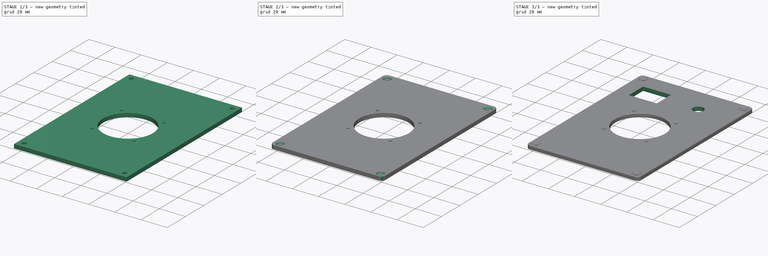
[diagram: build sequence overview — one tinted view per stage of 3, left to right]
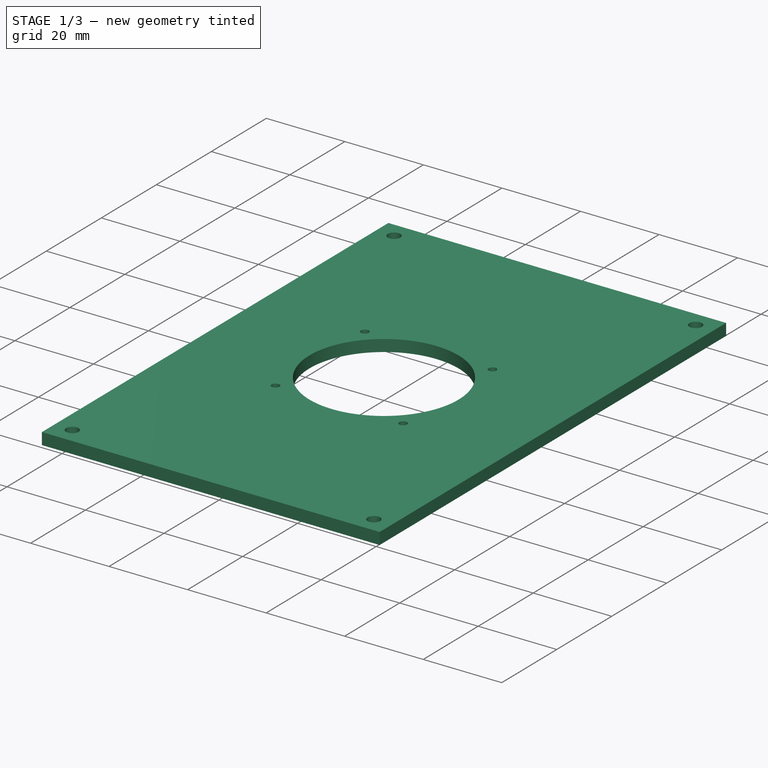
[diagram: stage 1 of 3 — iso view after this stage's code; geometry added in this stage tinted green]
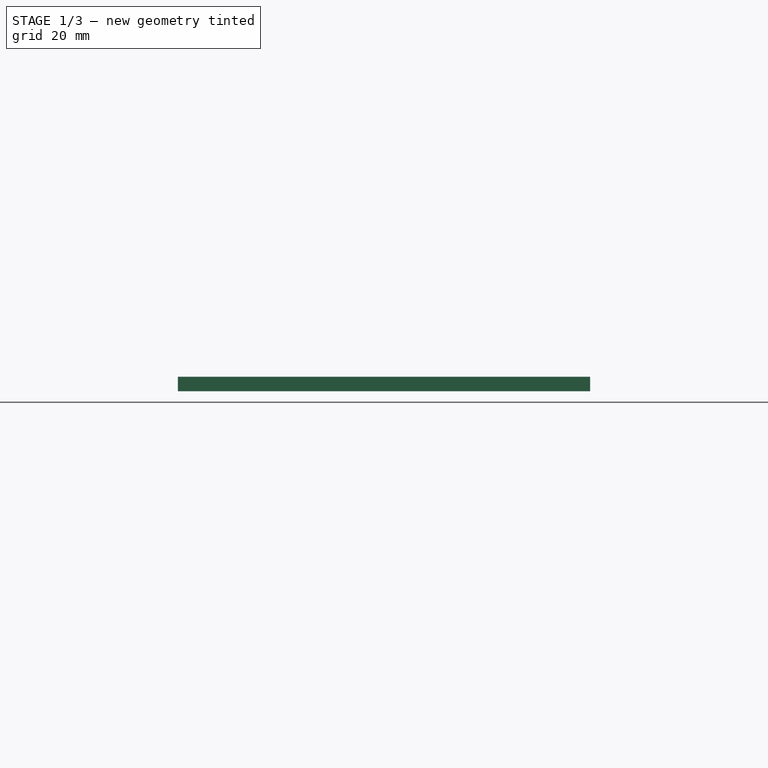
[diagram: stage 1 of 3 — front view after this stage's code; geometry added in this stage tinted green]
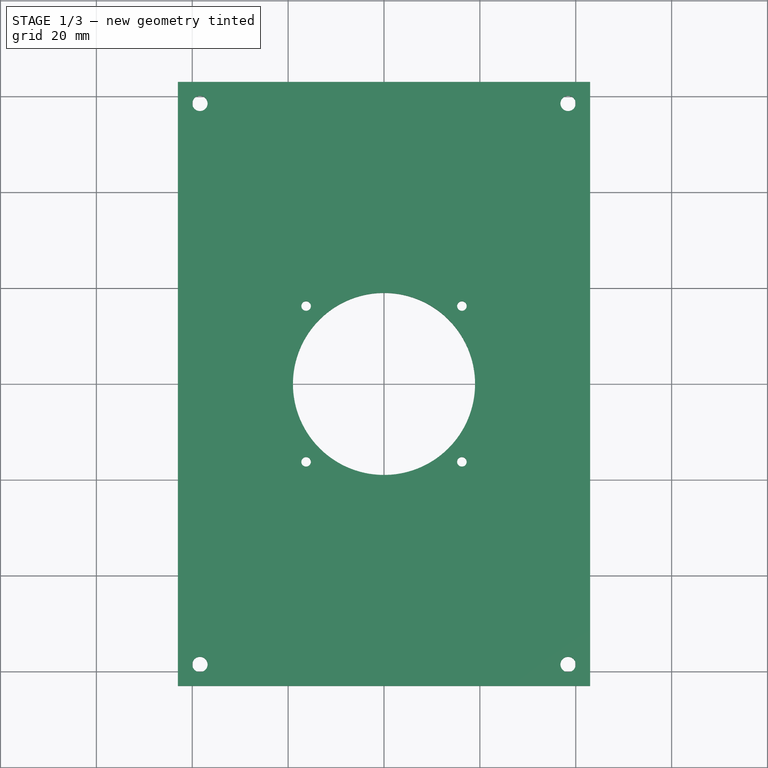
[diagram: stage 1 of 3 — top view after this stage's code; geometry added in this stage tinted green]
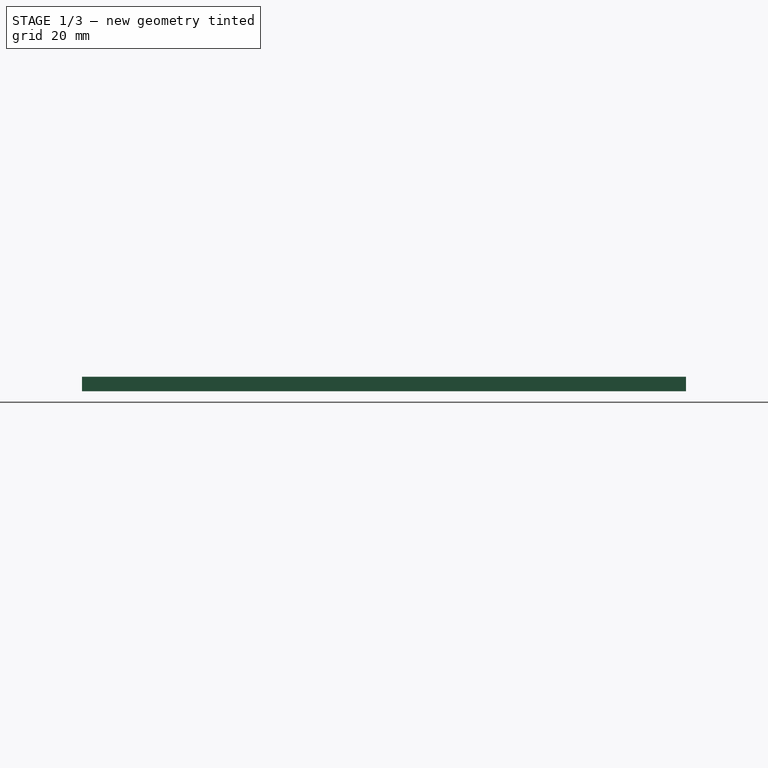
[diagram: stage 1 of 3 — right view after this stage's code; geometry added in this stage tinted green]
FCSTD DOCUMENT  (FreeCAD 0.18.3R)
Label: box_lid
License: All rights reserved
LicenseURL: http://en.wikipedia.org/wiki/All_rights_reserved
objects: Sketcher::SketchObject×3, PartDesign::Pocket×2, PartDesign::Fillet×2, PartDesign::Pad×1, PartDesign::Chamfer×1, PartDesign::Body×1
note: 13 computed .brp shape members not serialized (recipe doc carries the construction recipe); baked Part::Feature solids carry a one-line shape summary decoded from their .brp

FEATURE [Sketcher::SketchObject] Sketch
  MapMode = 5
  Support = -> [XY_Plane]
  sketch-geometry (4):
    g0: LineSegment StartX=-43 StartY=63 StartZ=0 EndX=43 EndY=63 EndZ=0
    g1: LineSegment StartX=43 StartY=63 StartZ=0 EndX=43 EndY=-63 EndZ=0
    g2: LineSegment StartX=43 StartY=-63 StartZ=0 EndX=-43 EndY=-63 EndZ=0
    g3: LineSegment StartX=-43 StartY=-63 StartZ=0 EndX=-43 EndY=63 EndZ=0
  constraints (10):
    c: Coincident(g0,g1)
    c: Coincident(g1,g2)
    c: Coincident(g2,g3)
    c: Coincident(g3,g0)
    c: Horizontal(g2)
    c: Vertical(g3)
    c: Symmetric(g0,g0,g-2)
    c: Symmetric(g0,g1,g-1)
    c: DistanceX(g0,g0) = 86
    c: DistanceY(g1,g1) = 126
FEATURE [PartDesign::Pad] Pad
  Length = 3
  Length2 = 100
  Profile = -> Sketch
  Type = 0
FEATURE [Sketcher::SketchObject] Sketch001
  MapMode = 5
  Placement = pos=(0,0,3) rot=(0,0,1;0rad)
  Support = -> [Pad]
  sketch-geometry (9):
    g0: Circle CenterX=0 CenterY=0 CenterZ=0 NormalX=0 NormalY=0 NormalZ=1 AngleXU=0 Radius=19
    g1: Circle CenterX=-16.25 CenterY=16.25 CenterZ=0 NormalX=0 NormalY=0 NormalZ=1 AngleXU=0 Radius=1
    g2: Circle CenterX=16.25 CenterY=16.25 CenterZ=0 NormalX=0 NormalY=0 NormalZ=1 AngleXU=0 Radius=1
    g3: Circle CenterX=16.25 CenterY=-16.25 CenterZ=0 NormalX=0 NormalY=0 NormalZ=1 AngleXU=0 Radius=1
    g4: Circle CenterX=-16.25 CenterY=-16.25 CenterZ=0 NormalX=0 NormalY=0 NormalZ=1 AngleXU=0 Radius=1
    g5: Circle CenterX=-38.4 CenterY=58.525 CenterZ=0 NormalX=0 NormalY=0 NormalZ=1 AngleXU=0 Radius=1.6
    g6: Circle CenterX=38.4 CenterY=58.525 CenterZ=0 NormalX=0 NormalY=0 NormalZ=1 AngleXU=0 Radius=1.6
    g7: Circle CenterX=38.4 CenterY=-58.525 CenterZ=0 NormalX=0 NormalY=0 NormalZ=1 AngleXU=0 Radius=1.6
    g8: Circle CenterX=-38.4 CenterY=-58.525 CenterZ=0 NormalX=0 NormalY=0 NormalZ=1 AngleXU=0 Radius=1.6
  constraints (22):
    c: Coincident(g0,g-1)
    c: Diameter(g0) = 38
    c: Diameter(g1) = 2
    c: Equal(g1,g2)
    c: Equal(g1,g3)
    c: Equal(g1,g4)
    c: Symmetric(g1,g2,g-2)
    c: Symmetric(g3,g2,g-1)
    c: Horizontal(g4,g3)
    c: Vertical(g1,g4)
    c: DistanceX(g1,g2) = 32.5
    c: DistanceY(g3,g2) = 32.5
    c: Diameter(g8) = 3.2
    c: Equal(g8,g7)
    c: Equal(g8,g6)
    c: Equal(g8,g5)
    c: Symmetric(g5,g6,g-2)
    c: Symmetric(g5,g8,g-1)
    c: Horizontal(g8,g7)
    c: Vertical(g7,g6)
    c: DistanceX(g5,g6) = 76.8
    c: DistanceY(g7,g6) = 117.05
FEATURE [PartDesign::Pocket] Pocket
  BaseFeature = -> Pad
  Length = 5
  Length2 = 100
  Profile = -> Sketch001
  Type = 0
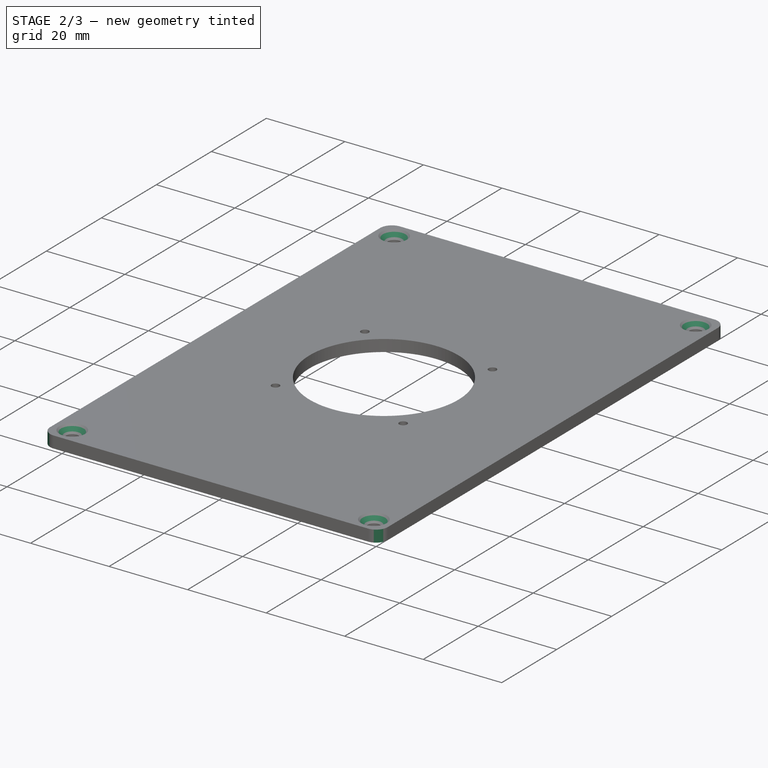
[diagram: stage 2 of 3 — iso view after this stage's code; geometry added in this stage tinted green]
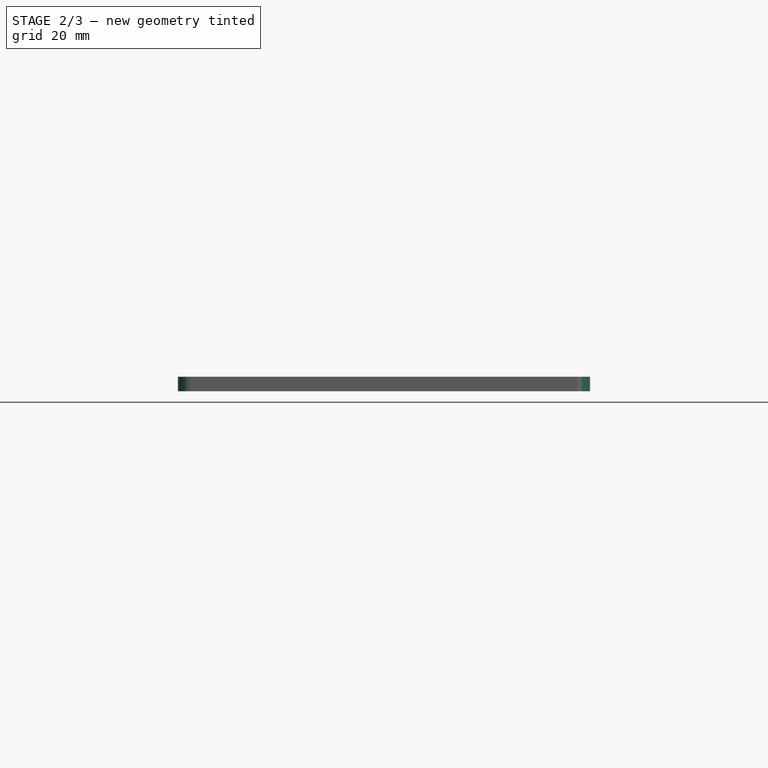
[diagram: stage 2 of 3 — front view after this stage's code; geometry added in this stage tinted green]
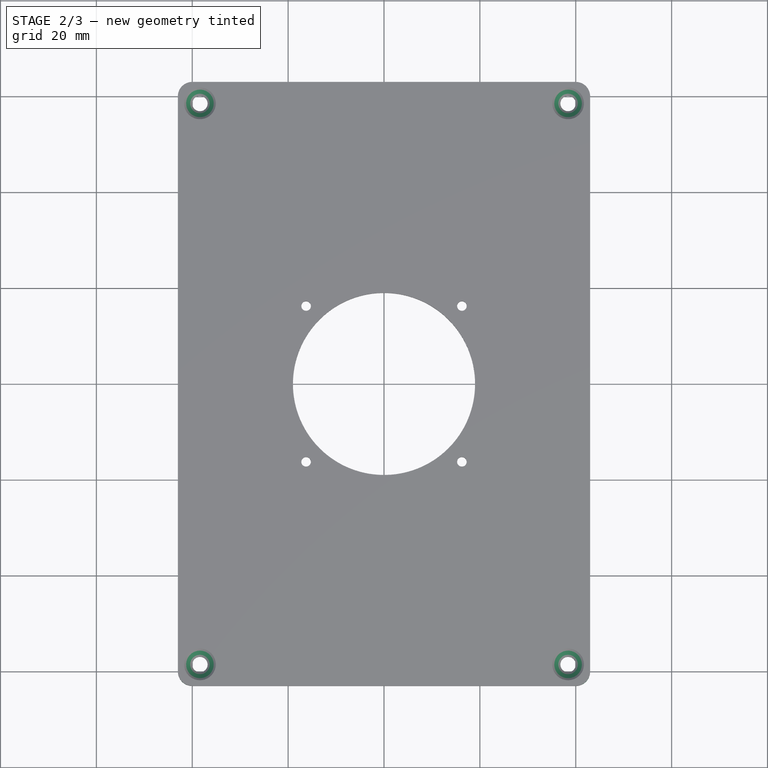
[diagram: stage 2 of 3 — top view after this stage's code; geometry added in this stage tinted green]
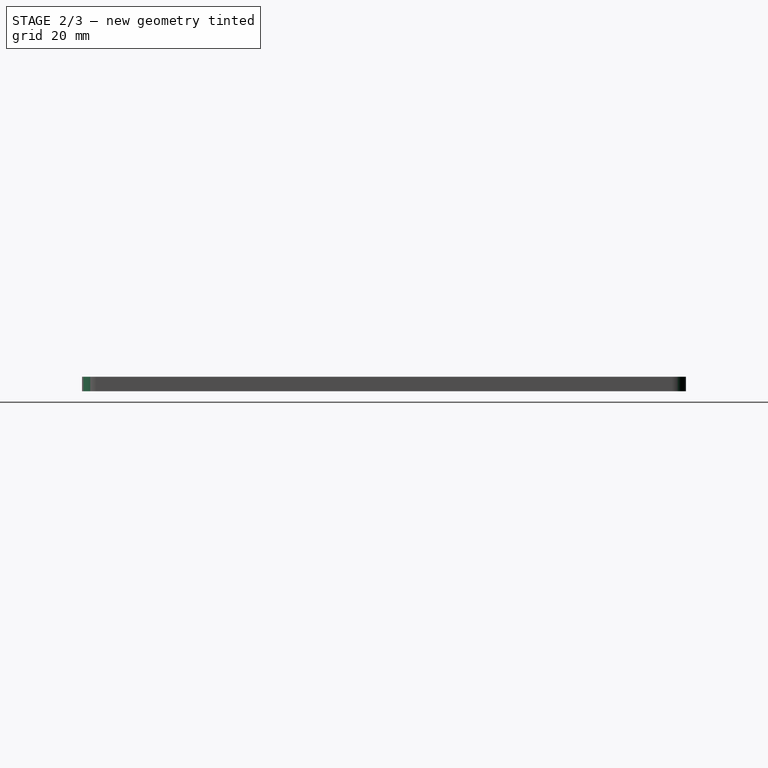
[diagram: stage 2 of 3 — right view after this stage's code; geometry added in this stage tinted green]
FEATURE [PartDesign::Fillet] Fillet
  Base = -> Pocket [Edge5,Edge8,Edge2,Edge1]
  BaseFeature = -> Pocket
  Radius = 2.99
FEATURE [PartDesign::Chamfer] Chamfer
  Base = -> Fillet [Edge35,Edge36,Edge30,Edge33]
  BaseFeature = -> Fillet
  Size = 1.7
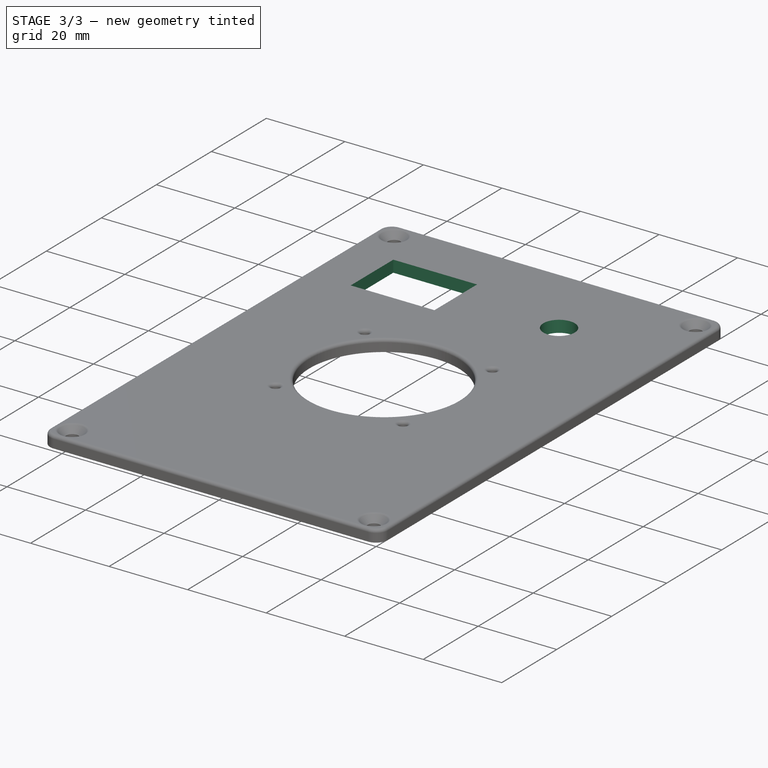
[diagram: stage 3 of 3 — iso view after this stage's code; geometry added in this stage tinted green]
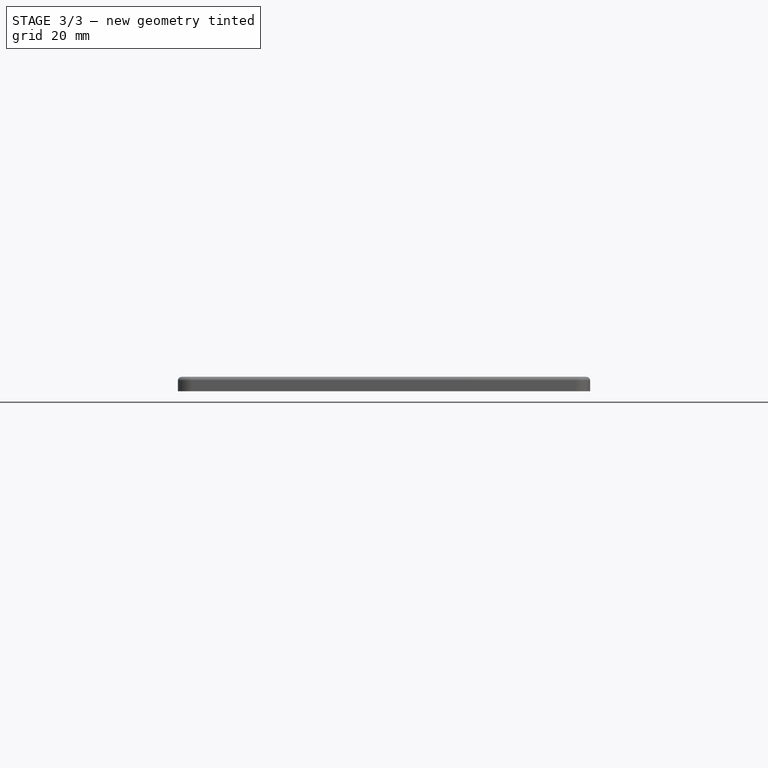
[diagram: stage 3 of 3 — front view after this stage's code; geometry added in this stage tinted green]
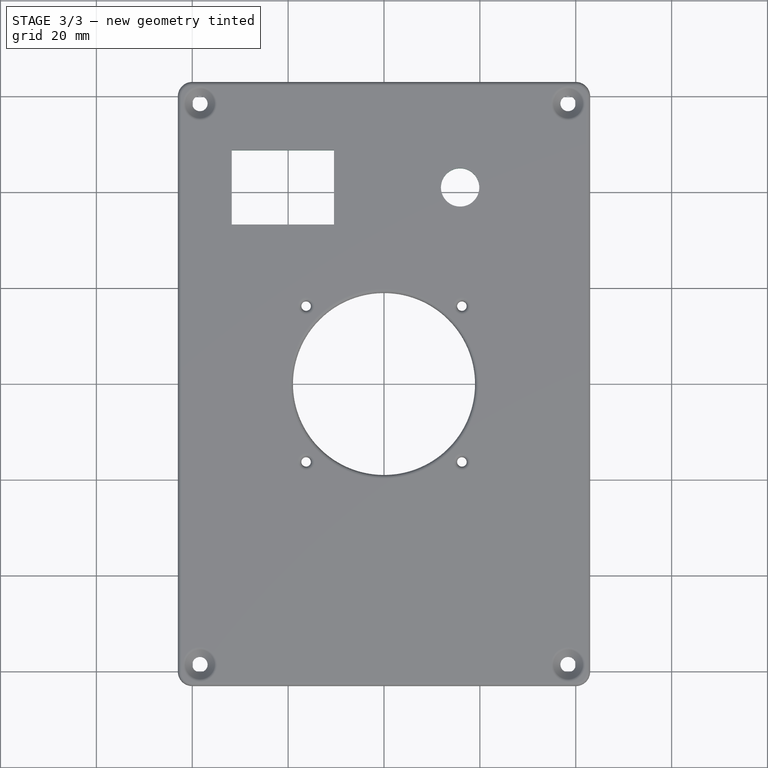
[diagram: stage 3 of 3 — top view after this stage's code; geometry added in this stage tinted green]
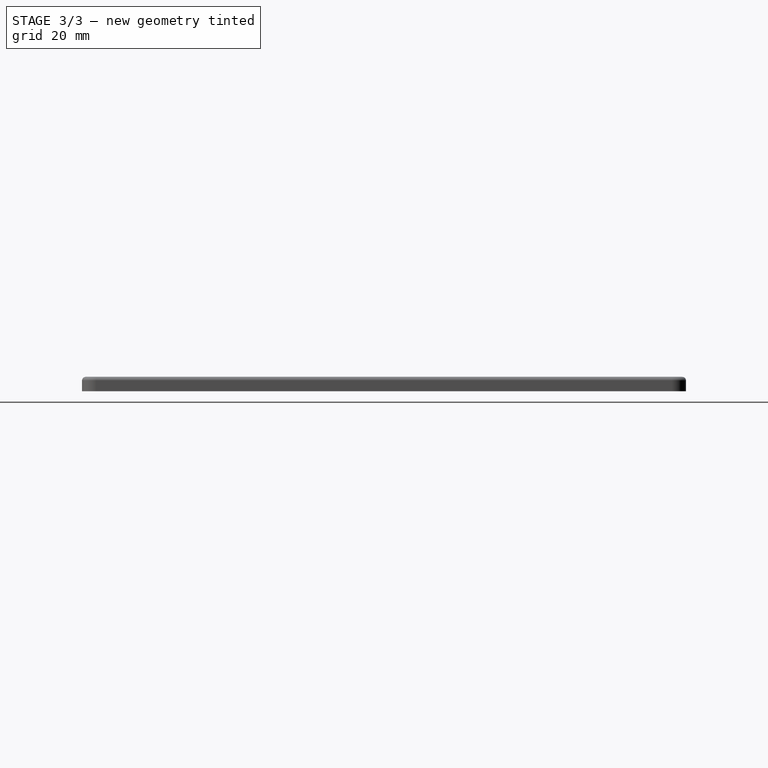
[diagram: stage 3 of 3 — right view after this stage's code; geometry added in this stage tinted green]
FEATURE [PartDesign::Fillet] Fillet001
  Base = -> Chamfer [Face1]
  BaseFeature = -> Chamfer
  Radius = 0.8
FEATURE [Sketcher::SketchObject] Sketch002
  ExternalGeometry = -> [Fillet001]
  MapMode = 5
  Placement = pos=(0,0,3) rot=(0,0,1;0rad)
  Support = -> [Fillet001]
  sketch-geometry (11):
    g0: LineSegment [constr] StartX=0 StartY=62.2 StartZ=0 EndX=0 EndY=41 EndZ=0
    g1: LineSegment [constr] StartX=0 StartY=41 StartZ=0 EndX=0 EndY=19.8 EndZ=0
    g2: LineSegment [constr] StartX=0 StartY=41 StartZ=0 EndX=-21.1 EndY=41 EndZ=0
    g3: LineSegment [constr] StartX=-42.2 StartY=41 StartZ=0 EndX=-21.1 EndY=41 EndZ=0
    g4: LineSegment [constr] StartX=0 StartY=41 StartZ=0 EndX=15.875 EndY=41 EndZ=0
    g5: Circle CenterX=15.875 CenterY=41 CenterZ=0 NormalX=0 NormalY=0 NormalZ=1 AngleXU=0 Radius=4
    g6: LineSegment StartX=-31.765 StartY=48.745 StartZ=0 EndX=-10.435 EndY=48.745 EndZ=0
    g7: LineSegment StartX=-10.435 StartY=48.745 StartZ=0 EndX=-10.435 EndY=33.255 EndZ=0
    g8: LineSegment StartX=-10.435 StartY=33.255 StartZ=0 EndX=-31.765 EndY=33.255 EndZ=0
    g9: LineSegment StartX=-31.765 StartY=33.255 StartZ=0 EndX=-31.765 EndY=48.745 EndZ=0
    g10: LineSegment [constr] StartX=-21.1 StartY=41 StartZ=0 EndX=-21.1 EndY=62.2 EndZ=0
  constraints (31):
    c: Vertical(g0)
    c: Vertical(g1)
    c: Horizontal(g4)
    c: Horizontal(g2)
    c: Horizontal(g3)
    c: PointOnObject(g1,g-4)
    c: PointOnObject(g1,g-2)
    c: PointOnObject(g0,g-3)
    c: Coincident(g0,g1)
    c: Equal(g0,g1)
    c: Coincident(g4,g0)
    c: PointOnObject(g3,g-6)
    c: Coincident(g3,g2)
    c: Coincident(g2,g0)
    c: Equal(g2,g3)
    c: Coincident(g5,g4)
    c: Diameter(g5) = 8
    c: Coincident(g6,g7)
    c: Coincident(g7,g8)
    c: Coincident(g8,g9)
    c: Coincident(g9,g6)
    c: Horizontal(g6)
    c: Horizontal(g8)
    c: Vertical(g9)
    c: Symmetric(g6,g7,g2)
    c: DistanceY(g7,g6) = 15.49
    c: Coincident(g10,g2)
    c: PointOnObject(g10,g-3)
    c: Symmetric(g6,g6,g10)
    c: DistanceX(g8,g8) = 21.33
    c: DistanceX(g4,g4) = 15.875
FEATURE [PartDesign::Pocket] Pocket001
  BaseFeature = -> Fillet001
  Length = 5
  Length2 = 100
  Profile = -> Sketch002
  Type = 1
FEATURE [PartDesign::Body] Body
  Group = -> [Sketch,Pad,Sketch001,Pocket,Fillet,Chamfer,Fillet001,Sketch002,Pocket001]
  Origin = -> Origin
  Tip = -> Pocket001
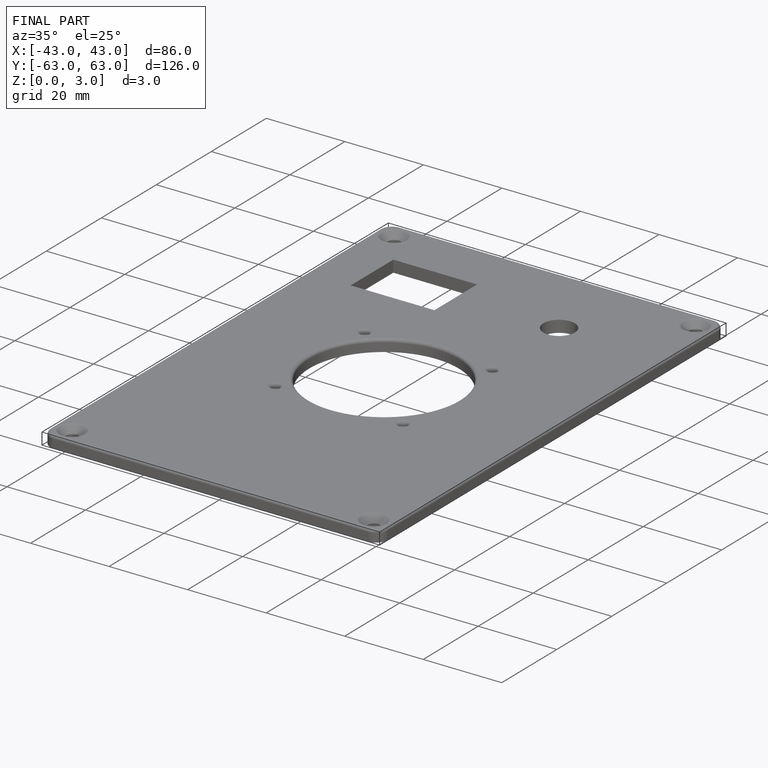
[diagram: finished part — iso view with bounding-box wireframe]
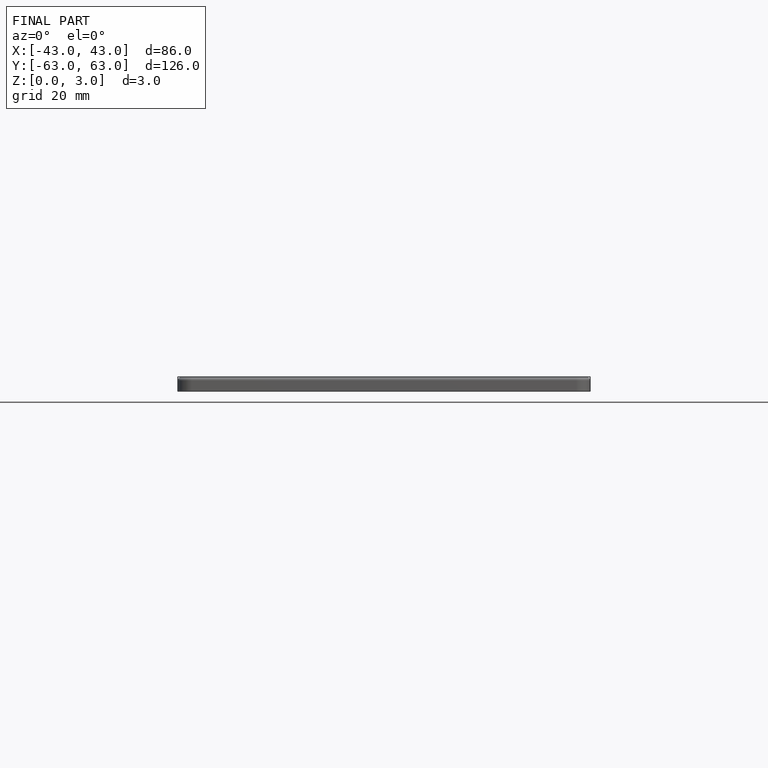
[diagram: finished part — front view with bounding-box wireframe]
